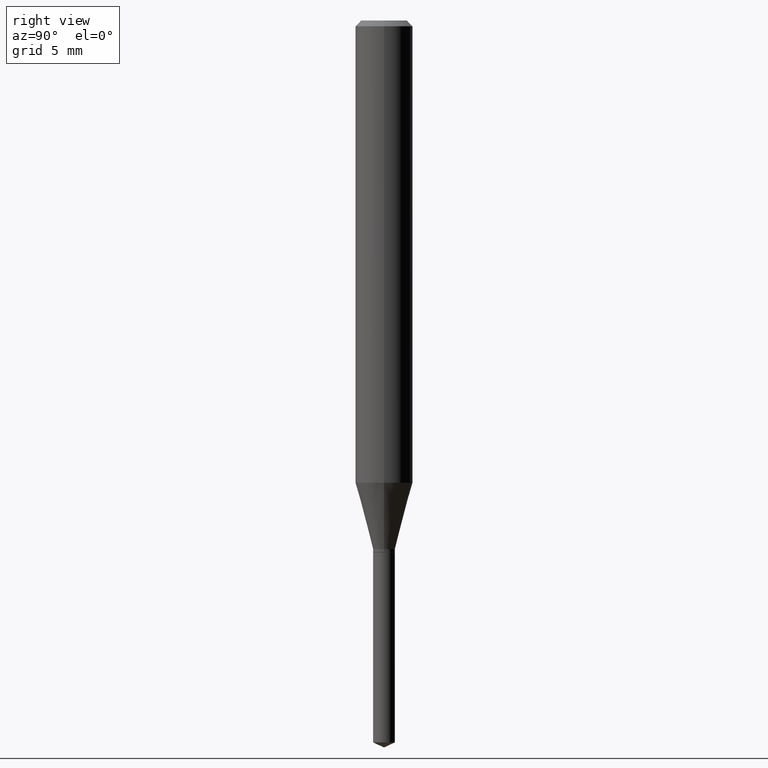
[diagram: clean part render]
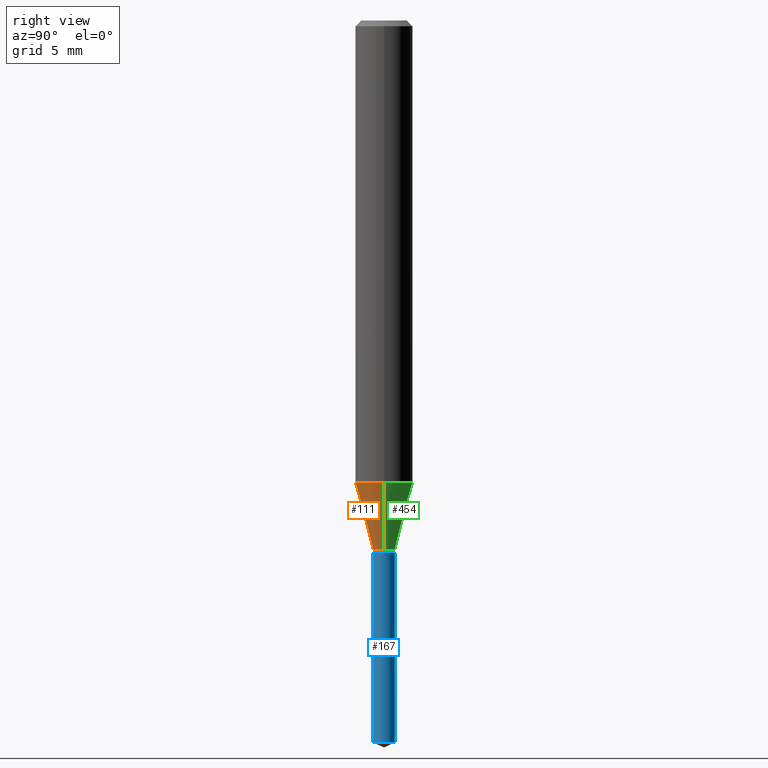
[diagram: same view with three faces highlighted in distinct colors, each labeled with its STEP entity id]
A machine part, right view with three faces highlighted in distinct colors.
Their STEP definitions:

[orange] entity #111 — the highlighted conical surface has half-angle 15 deg.
#35 = DIRECTION ( 'NONE',  ( 1.000000000000000000, -6.982962677686273810E-15, 0.000000000000000000 ) ) ;
#52 = VERTEX_POINT ( 'NONE', #480 ) ;
#71 = CARTESIAN_POINT ( 'NONE',  ( 0.02245000000000000120, -3.954800912507630379E-15, -1.087799999999999878 ) ) ;
#73 = AXIS2_PLACEMENT_3D ( 'NONE', #158, #202, #470 ) ;
#74 = DIRECTION ( 'NONE',  ( 0.2588190451025212391, 1.565188264969622362E-15, 0.9659258262890679791 ) ) ;
#91 = CARTESIAN_POINT ( 'NONE',  ( -0.05905000000000011628, -2.901545796468403785E-15, -0.9512069404429788211 ) ) ;
#94 = EDGE_CURVE ( 'NONE', #223, #52, #109, .T. ) ;
#109 = CIRCLE ( 'NONE', #314, 0.05905000000000011628 ) ;
#111 = ADVANCED_FACE ( 'NONE', ( #356 ), #485, .T. ) ;
#158 = CARTESIAN_POINT ( 'NONE',  ( 2.660180967368191730E-29, -3.798033400393573048E-15, -1.087799999999999878 ) ) ;
#161 = CIRCLE ( 'NONE', #222, 0.02245000000000000120 ) ;
#179 = EDGE_CURVE ( 'NONE', #405, #52, #326, .T. ) ;
#202 = DIRECTION ( 'NONE',  ( -2.445468806185136597E-29, 3.491481338843145583E-15, 1.000000000000000000 ) ) ;
#222 = AXIS2_PLACEMENT_3D ( 'NONE', #289, #373, #35 ) ;
#223 = VERTEX_POINT ( 'NONE', #91 ) ;
#250 = VECTOR ( 'NONE', #74, 39.37007874015748854 ) ;
#270 = CARTESIAN_POINT ( 'NONE',  ( 2.326146901080107972E-29, -3.321121281934744067E-15, -0.9512069404429788211 ) ) ;
#289 = CARTESIAN_POINT ( 'NONE',  ( 2.660180967368191730E-29, -3.798033400393573048E-15, -1.087799999999999878 ) ) ;
#297 = LINE ( 'NONE', #382, #408 ) ;
#314 = AXIS2_PLACEMENT_3D ( 'NONE', #270, #434, #466 ) ;
#326 = LINE ( 'NONE', #71, #250 ) ;
#347 = VERTEX_POINT ( 'NONE', #411 ) ;
#356 = FACE_OUTER_BOUND ( 'NONE', #438, .T. ) ;
#370 = EDGE_CURVE ( 'NONE', #347, #223, #297, .T. ) ;
#373 = DIRECTION ( 'NONE',  ( -2.445468806185136597E-29, 3.491481338843145583E-15, 1.000000000000000000 ) ) ;
#382 = CARTESIAN_POINT ( 'NONE',  ( -0.02245000000000000120, -3.638516556215430769E-15, -1.087799999999999878 ) ) ;
#396 = ORIENTED_EDGE ( 'NONE', *, *, #179, .T. ) ;
#403 = ORIENTED_EDGE ( 'NONE', *, *, #94, .F. ) ;
#404 = EDGE_CURVE ( 'NONE', #347, #405, #161, .T. ) ;
#405 = VERTEX_POINT ( 'NONE', #457 ) ;
#408 = VECTOR ( 'NONE', #487, 39.37007874015748854 ) ;
#411 = CARTESIAN_POINT ( 'NONE',  ( -0.02245000000000000120, -3.649340148365844880E-15, -1.087799999999999878 ) ) ;
#434 = DIRECTION ( 'NONE',  ( -2.445468806185136597E-29, 3.491481338843145583E-15, 1.000000000000000000 ) ) ;
#438 = EDGE_LOOP ( 'NONE', ( #481, #444, #396, #403 ) ) ;
#444 = ORIENTED_EDGE ( 'NONE', *, *, #404, .T. ) ;
#457 = CARTESIAN_POINT ( 'NONE',  ( 0.02245000000000000120, -3.954800912507630379E-15, -1.087799999999999878 ) ) ;
#466 = DIRECTION ( 'NONE',  ( 1.000000000000000000, -6.982962677686266711E-15, 0.000000000000000000 ) ) ;
#470 = DIRECTION ( 'NONE',  ( 1.000000000000000000, -6.982962677686273810E-15, 0.000000000000000000 ) ) ;
#480 = CARTESIAN_POINT ( 'NONE',  ( 0.05905000000000011628, -3.733465228052118987E-15, -0.9512069404429788211 ) ) ;
#481 = ORIENTED_EDGE ( 'NONE', *, *, #370, .F. ) ;
#485 = CONICAL_SURFACE ( 'NONE', #73, 0.02245000000000000120, 0.2617993877991499629 ) ;
#487 = DIRECTION ( 'NONE',  ( -0.2588190451025212391, 5.211531920934549464E-15, 0.9659258262890679791 ) ) ;

[blue] entity #167 — the highlighted cylindrical surface (edge-blend (fillet) strip) has radius 0.5702 mm, axis along (-0, 0, 1).
#29 = DIRECTION ( 'NONE',  ( -2.445470214571802116E-29, 3.491479321953280158E-15, 1.000000000000000000 ) ) ;
#56 = ORIENTED_EDGE ( 'NONE', *, *, #248, .F. ) ;
#66 = FACE_OUTER_BOUND ( 'NONE', #303, .T. ) ;
#83 = VERTEX_POINT ( 'NONE', #168 ) ;
#88 = DIRECTION ( 'NONE',  ( -2.445470214571802116E-29, 3.491479321953280158E-15, 1.000000000000000000 ) ) ;
#122 = VERTEX_POINT ( 'NONE', #320 ) ;
#145 = EDGE_CURVE ( 'NONE', #483, #362, #278, .T. ) ;
#159 = CARTESIAN_POINT ( 'NONE',  ( 2.676565608369631794E-29, -3.821426325363822773E-15, -1.094499999999999806 ) ) ;
#162 = DIRECTION ( 'NONE',  ( -6.982962677686266711E-15, -1.000000000000000000, 6.084293972526198645E-15 ) ) ;
#167 = ADVANCED_FACE ( 'NONE', ( #66 ), #311, .T. ) ;
#168 = CARTESIAN_POINT ( 'NONE',  ( -1.567675121140203782E-16, -0.02245000000000519150, -1.485631393074420270 ) ) ;
#169 = DIRECTION ( 'NONE',  ( -2.445470214571802396E-29, 3.491479321953280158E-15, 1.000000000000000000 ) ) ;
#192 = ORIENTED_EDGE ( 'NONE', *, *, #145, .T. ) ;
#227 = EDGE_CURVE ( 'NONE', #83, #122, #239, .T. ) ;
#239 = LINE ( 'NONE', #395, #419 ) ;
#248 = EDGE_CURVE ( 'NONE', #122, #362, #335, .T. ) ;
#253 = EDGE_CURVE ( 'NONE', #83, #483, #254, .T. ) ;
#254 = CIRCLE ( 'NONE', #293, 0.02245000000000000120 ) ;
#278 = LINE ( 'NONE', #343, #330 ) ;
#293 = AXIS2_PLACEMENT_3D ( 'NONE', #353, #477, #387 ) ;
#303 = EDGE_LOOP ( 'NONE', ( #445, #192, #56, #358 ) ) ;
#311 = CYLINDRICAL_SURFACE ( 'NONE', #479, 0.02245000000000000120 ) ;
#320 = CARTESIAN_POINT ( 'NONE',  ( -1.567675121140299184E-16, -0.02245000000000382107, -1.094499999999999806 ) ) ;
#321 = DIRECTION ( 'NONE',  ( -6.982962677686266711E-15, -1.000000000000000000, 6.084293972526198645E-15 ) ) ;
#330 = VECTOR ( 'NONE', #386, 39.37007874015748143 ) ;
#335 = CIRCLE ( 'NONE', #439, 0.02245000000000000120 ) ;
#340 = CARTESIAN_POINT ( 'NONE',  ( 1.595168441781788125E-16, 0.02244999999999481438, -1.485631393074420270 ) ) ;
#343 = CARTESIAN_POINT ( 'NONE',  ( 1.595168441781692230E-16, 0.02244999999999618134, -1.094500000000000028 ) ) ;
#353 = CARTESIAN_POINT ( 'NONE',  ( 3.633065780117101996E-29, -5.187053496449942031E-15, -1.485631393074420270 ) ) ;
#358 = ORIENTED_EDGE ( 'NONE', *, *, #227, .F. ) ;
#359 = CARTESIAN_POINT ( 'NONE',  ( 2.676565608369631794E-29, -3.821426325363822773E-15, -1.094499999999999806 ) ) ;
#362 = VERTEX_POINT ( 'NONE', #490 ) ;
#386 = DIRECTION ( 'NONE',  ( -2.445470214571802396E-29, 3.491479321953280158E-15, 1.000000000000000000 ) ) ;
#387 = DIRECTION ( 'NONE',  ( -6.982962677686266711E-15, -1.000000000000000000, 0.000000000000000000 ) ) ;
#395 = CARTESIAN_POINT ( 'NONE',  ( -1.567675121140299184E-16, -0.02245000000000382107, -1.094499999999999806 ) ) ;
#419 = VECTOR ( 'NONE', #169, 39.37007874015748143 ) ;
#439 = AXIS2_PLACEMENT_3D ( 'NONE', #159, #29, #321 ) ;
#445 = ORIENTED_EDGE ( 'NONE', *, *, #253, .T. ) ;
#477 = DIRECTION ( 'NONE',  ( -2.445470214571802116E-29, 3.491479321953280158E-15, 1.000000000000000000 ) ) ;
#479 = AXIS2_PLACEMENT_3D ( 'NONE', #359, #88, #162 ) ;
#483 = VERTEX_POINT ( 'NONE', #340 ) ;
#490 = CARTESIAN_POINT ( 'NONE',  ( 1.595168441781788618E-16, 0.02244999999999618134, -1.094500000000000028 ) ) ;

[green] entity #454 — the highlighted conical surface has half-angle 15 deg.
#8 = FACE_OUTER_BOUND ( 'NONE', #430, .T. ) ;
#23 = AXIS2_PLACEMENT_3D ( 'NONE', #236, #464, #157 ) ;
#33 = EDGE_CURVE ( 'NONE', #52, #223, #484, .T. ) ;
#52 = VERTEX_POINT ( 'NONE', #480 ) ;
#60 = AXIS2_PLACEMENT_3D ( 'NONE', #453, #215, #180 ) ;
#71 = CARTESIAN_POINT ( 'NONE',  ( 0.02245000000000000120, -3.954800912507630379E-15, -1.087799999999999878 ) ) ;
#74 = DIRECTION ( 'NONE',  ( 0.2588190451025212391, 1.565188264969622362E-15, 0.9659258262890679791 ) ) ;
#91 = CARTESIAN_POINT ( 'NONE',  ( -0.05905000000000011628, -2.901545796468403785E-15, -0.9512069404429788211 ) ) ;
#102 = CIRCLE ( 'NONE', #374, 0.02245000000000000120 ) ;
#144 = ORIENTED_EDGE ( 'NONE', *, *, #401, .T. ) ;
#157 = DIRECTION ( 'NONE',  ( 1.000000000000000000, -6.982962677686273810E-15, 0.000000000000000000 ) ) ;
#179 = EDGE_CURVE ( 'NONE', #405, #52, #326, .T. ) ;
#180 = DIRECTION ( 'NONE',  ( 1.000000000000000000, -6.982962677686266711E-15, 0.000000000000000000 ) ) ;
#187 = ORIENTED_EDGE ( 'NONE', *, *, #33, .F. ) ;
#215 = DIRECTION ( 'NONE',  ( -2.445468806185136597E-29, 3.491481338843145583E-15, 1.000000000000000000 ) ) ;
#218 = DIRECTION ( 'NONE',  ( -2.445468806185136597E-29, 3.491481338843145583E-15, 1.000000000000000000 ) ) ;
#223 = VERTEX_POINT ( 'NONE', #91 ) ;
#236 = CARTESIAN_POINT ( 'NONE',  ( 2.660180967368191730E-29, -3.798033400393573048E-15, -1.087799999999999878 ) ) ;
#250 = VECTOR ( 'NONE', #74, 39.37007874015748854 ) ;
#257 = CARTESIAN_POINT ( 'NONE',  ( 2.660180967368191730E-29, -3.798033400393573048E-15, -1.087799999999999878 ) ) ;
#297 = LINE ( 'NONE', #382, #408 ) ;
#310 = ORIENTED_EDGE ( 'NONE', *, *, #179, .F. ) ;
#326 = LINE ( 'NONE', #71, #250 ) ;
#333 = DIRECTION ( 'NONE',  ( 1.000000000000000000, -6.982962677686273810E-15, 0.000000000000000000 ) ) ;
#342 = CONICAL_SURFACE ( 'NONE', #23, 0.02245000000000000120, 0.2617993877991499629 ) ;
#347 = VERTEX_POINT ( 'NONE', #411 ) ;
#370 = EDGE_CURVE ( 'NONE', #347, #223, #297, .T. ) ;
#374 = AXIS2_PLACEMENT_3D ( 'NONE', #257, #218, #333 ) ;
#382 = CARTESIAN_POINT ( 'NONE',  ( -0.02245000000000000120, -3.638516556215430769E-15, -1.087799999999999878 ) ) ;
#401 = EDGE_CURVE ( 'NONE', #405, #347, #102, .T. ) ;
#405 = VERTEX_POINT ( 'NONE', #457 ) ;
#408 = VECTOR ( 'NONE', #487, 39.37007874015748854 ) ;
#411 = CARTESIAN_POINT ( 'NONE',  ( -0.02245000000000000120, -3.649340148365844880E-15, -1.087799999999999878 ) ) ;
#430 = EDGE_LOOP ( 'NONE', ( #144, #463, #187, #310 ) ) ;
#453 = CARTESIAN_POINT ( 'NONE',  ( 2.326146901080107972E-29, -3.321121281934744067E-15, -0.9512069404429788211 ) ) ;
#454 = ADVANCED_FACE ( 'NONE', ( #8 ), #342, .T. ) ;
#457 = CARTESIAN_POINT ( 'NONE',  ( 0.02245000000000000120, -3.954800912507630379E-15, -1.087799999999999878 ) ) ;
#463 = ORIENTED_EDGE ( 'NONE', *, *, #370, .T. ) ;
#464 = DIRECTION ( 'NONE',  ( -2.445468806185136597E-29, 3.491481338843145583E-15, 1.000000000000000000 ) ) ;
#480 = CARTESIAN_POINT ( 'NONE',  ( 0.05905000000000011628, -3.733465228052118987E-15, -0.9512069404429788211 ) ) ;
#484 = CIRCLE ( 'NONE', #60, 0.05905000000000011628 ) ;
#487 = DIRECTION ( 'NONE',  ( -0.2588190451025212391, 5.211531920934549464E-15, 0.9659258262890679791 ) ) ;